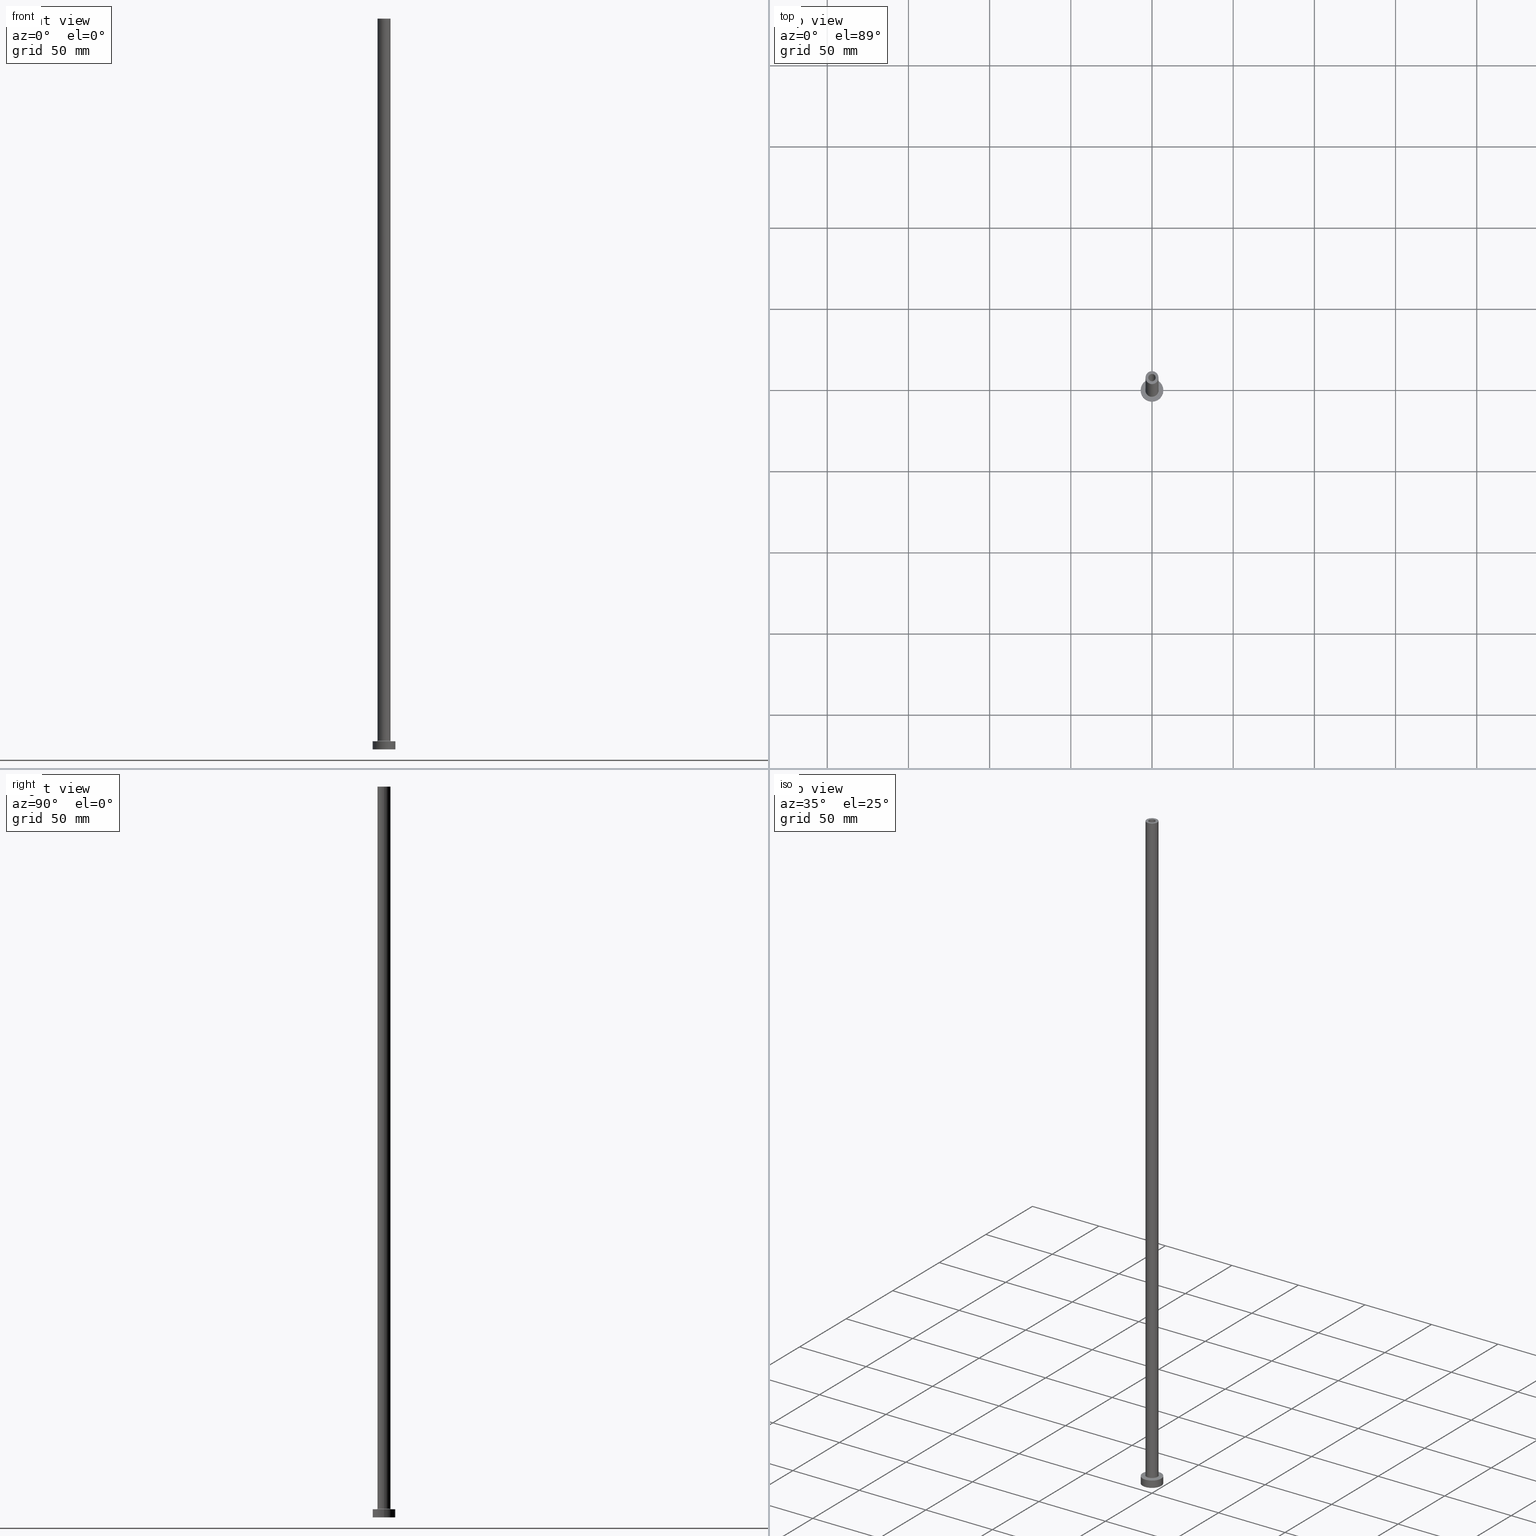
[diagram: canonical four-view strip — front | top / right | iso, engineering-drawing reading convention]
A machine part, canonical four-view strip (front | top / right | iso — engineering-drawing reading convention). The complete STEP part file that produces these views, byte-faithful:
ISO-10303-21;
HEADER;
FILE_DESCRIPTION (( 'STEP AP203' ),
    '1' );
FILE_NAME ('80ad.STEP',
    '2023-02-13T17:20:57',
    ( '' ),
    ( '' ),
    'SwSTEP 2.0',
    'SolidWorks 2019',
    '' );
FILE_SCHEMA (( 'CONFIG_CONTROL_DESIGN' ));
ENDSEC;

DATA;
#1 = ORIENTED_EDGE ( 'NONE', *, *, #332, .T. ) ;
#2 = CIRCLE ( 'NONE', #368, 2.250000000000000000 ) ;
#3 = AXIS2_PLACEMENT_3D ( 'NONE', #202, #346, #340 ) ;
#4 = AXIS2_PLACEMENT_3D ( 'NONE', #111, #216, #356 ) ;
#5 = VERTEX_POINT ( 'NONE', #152 ) ;
#6 = DIRECTION ( 'NONE',  ( 1.000000000000000000, 0.000000000000000000, 0.000000000000000000 ) ) ;
#7 = ORIENTED_EDGE ( 'NONE', *, *, #336, .F. ) ;
#8 = LINE ( 'NONE', #77, #139 ) ;
#9 = FACE_OUTER_BOUND ( 'NONE', #40, .T. ) ;
#10 = CIRCLE ( 'NONE', #266, 2.399999999999999911 ) ;
#11 = AXIS2_PLACEMENT_3D ( 'NONE', #276, #168, #234 ) ;
#12 = AXIS2_PLACEMENT_3D ( 'NONE', #301, #437, #256 ) ;
#13 = CARTESIAN_POINT ( 'NONE',  ( 7.000000000000000000, 8.572527594031473190E-16, 0.000000000000000000 ) ) ;
#14 = COORDINATED_UNIVERSAL_TIME_OFFSET ( 1, 0, .AHEAD. ) ;
#15 = DIRECTION ( 'NONE',  ( -1.000000000000000000, 0.000000000000000000, 0.000000000000000000 ) ) ;
#16 = CARTESIAN_POINT ( 'NONE',  ( 4.000000000000000000, 4.898587196589412829E-16, 450.0000000000000000 ) ) ;
#17 = ADVANCED_FACE ( 'NONE', ( #9 ), #154, .F. ) ;
#18 = CIRCLE ( 'NONE', #204, 7.000000000000000000 ) ;
#19 = DATE_AND_TIME ( #244, #422 ) ;
#20 = DIRECTION ( 'NONE',  ( 0.000000000000000000, 0.000000000000000000, -1.000000000000000000 ) ) ;
#21 = SECURITY_CLASSIFICATION_LEVEL ( 'unclassified' ) ;
#22 = DIRECTION ( 'NONE',  ( 1.000000000000000000, 0.000000000000000000, 0.000000000000000000 ) ) ;
#23 = CC_DESIGN_PERSON_AND_ORGANIZATION_ASSIGNMENT ( #182, #459, ( #147 ) ) ;
#24 = EDGE_CURVE ( 'NONE', #445, #169, #98, .T. ) ;
#25 = CALENDAR_DATE ( 2023, 13, 2 ) ;
#26 = CC_DESIGN_PERSON_AND_ORGANIZATION_ASSIGNMENT ( #303, #119, ( #299 ) ) ;
#27 = VECTOR ( 'NONE', #226, 1000.000000000000000 ) ;
#28 = CARTESIAN_POINT ( 'NONE',  ( 0.000000000000000000, 0.000000000000000000, 450.0000000000000000 ) ) ;
#29 = CC_DESIGN_APPROVAL ( #289, ( #225 ) ) ;
#30 = ORIENTED_EDGE ( 'NONE', *, *, #361, .T. ) ;
#31 = AXIS2_PLACEMENT_3D ( 'NONE', #393, #396, #79 ) ;
#32 = LINE ( 'NONE', #386, #174 ) ;
#33 = ORIENTED_EDGE ( 'NONE', *, *, #165, .F. ) ;
#34 = DIRECTION ( 'NONE',  ( 1.000000000000000000, 0.000000000000000000, 0.000000000000000000 ) ) ;
#35 = ORIENTED_EDGE ( 'NONE', *, *, #263, .F. ) ;
#36 = ADVANCED_FACE ( 'NONE', ( #222, #366 ), #460, .T. ) ;
#37 = CARTESIAN_POINT ( 'NONE',  ( -2.250000000000000000, 0.000000000000000000, 450.0000000000000000 ) ) ;
#38 = EDGE_LOOP ( 'NONE', ( #69, #71 ) ) ;
#39 = COORDINATED_UNIVERSAL_TIME_OFFSET ( 1, 0, .AHEAD. ) ;
#40 = EDGE_LOOP ( 'NONE', ( #254, #167, #351, #382 ) ) ;
#41 = CARTESIAN_POINT ( 'NONE',  ( 0.000000000000000000, 0.000000000000000000, 0.000000000000000000 ) ) ;
#42 = MANIFOLD_SOLID_BREP ( 'Odebrat vysunut�m4', #118 ) ;
#43 = DATE_AND_TIME ( #247, #236 ) ;
#44 = ORIENTED_EDGE ( 'NONE', *, *, #432, .F. ) ;
#45 = AXIS2_PLACEMENT_3D ( 'NONE', #28, #138, #348 ) ;
#46 = CIRCLE ( 'NONE', #372, 4.000000000000000000 ) ;
#47 = CARTESIAN_POINT ( 'NONE',  ( 0.000000000000000000, 0.000000000000000000, 5.000000000000000000 ) ) ;
#48 = ORIENTED_EDGE ( 'NONE', *, *, #336, .T. ) ;
#49 = EDGE_CURVE ( 'NONE', #411, #101, #446, .T. ) ;
#50 = ORIENTED_EDGE ( 'NONE', *, *, #432, .T. ) ;
#51 = PLANE ( 'NONE',  #54 ) ;
#52 = AXIS2_PLACEMENT_3D ( 'NONE', #242, #431, #363 ) ;
#53 = APPROVAL_STATUS ( 'not_yet_approved' ) ;
#54 = AXIS2_PLACEMENT_3D ( 'NONE', #261, #374, #199 ) ;
#55 = CARTESIAN_POINT ( 'NONE',  ( 0.000000000000000000, 0.000000000000000000, 405.0000000000000000 ) ) ;
#56 = EDGE_CURVE ( 'NONE', #428, #279, #246, .T. ) ;
#57 = LINE ( 'NONE', #436, #212 ) ;
#58 = LINE ( 'NONE', #400, #308 ) ;
#59 = PERSON_AND_ORGANIZATION ( #294, #110 ) ;
#60 = CIRCLE ( 'NONE', #230, 2.250000000000000000 ) ;
#61 = DIRECTION ( 'NONE',  ( -0.000000000000000000, -0.000000000000000000, -1.000000000000000000 ) ) ;
#62 = CARTESIAN_POINT ( 'NONE',  ( 2.250000000000000000, 2.755455298081543792E-16, 450.0000000000000000 ) ) ;
#63 = CARTESIAN_POINT ( 'NONE',  ( 0.000000000000000000, 0.000000000000000000, 5.500000000000005329 ) ) ;
#64 = ORIENTED_EDGE ( 'NONE', *, *, #82, .T. ) ;
#65 = FACE_BOUND ( 'NONE', #245, .T. ) ;
#66 = CIRCLE ( 'NONE', #377, 4.500000000000000888 ) ;
#67 = ORIENTED_EDGE ( 'NONE', *, *, #189, .T. ) ;
#68 = DIRECTION ( 'NONE',  ( 0.000000000000000000, 0.000000000000000000, 1.000000000000000000 ) ) ;
#69 = ORIENTED_EDGE ( 'NONE', *, *, #49, .T. ) ;
#70 = DIRECTION ( 'NONE',  ( 0.000000000000000000, 0.000000000000000000, -1.000000000000000000 ) ) ;
#71 = ORIENTED_EDGE ( 'NONE', *, *, #201, .T. ) ;
#72 = PERSON_AND_ORGANIZATION ( #294, #110 ) ;
#73 = AXIS2_PLACEMENT_3D ( 'NONE', #360, #153, #215 ) ;
#74 = ORIENTED_EDGE ( 'NONE', *, *, #323, .T. ) ;
#75 = AXIS2_PLACEMENT_3D ( 'NONE', #433, #120, #398 ) ;
#76 = DIRECTION ( 'NONE',  ( 0.000000000000000000, 0.000000000000000000, -1.000000000000000000 ) ) ;
#77 = CARTESIAN_POINT ( 'NONE',  ( 7.000000000000000000, 8.572527594031473190E-16, 5.000000000000000000 ) ) ;
#78 = CARTESIAN_POINT ( 'NONE',  ( 0.000000000000000000, 0.000000000000000000, 411.7882250993908428 ) ) ;
#79 = DIRECTION ( 'NONE',  ( 1.000000000000000000, 0.000000000000000000, 0.000000000000000000 ) ) ;
#80 = CIRCLE ( 'NONE', #183, 4.000000000000000000 ) ;
#81 = MECHANICAL_CONTEXT ( 'NONE', #142, 'mechanical' ) ;
#82 = EDGE_CURVE ( 'NONE', #312, #239, #415, .T. ) ;
#83 = ORIENTED_EDGE ( 'NONE', *, *, #337, .F. ) ;
#84 = PERSON_AND_ORGANIZATION ( #294, #110 ) ;
#85 = ORIENTED_EDGE ( 'NONE', *, *, #461, .F. ) ;
#86 = DATE_TIME_ROLE ( 'classification_date' ) ;
#87 = DIRECTION ( 'NONE',  ( -1.000000000000000000, 0.000000000000000000, 0.000000000000000000 ) ) ;
#88 = ADVANCED_FACE ( 'NONE', ( #190, #91 ), #51, .F. ) ;
#89 =( GEOMETRIC_REPRESENTATION_CONTEXT ( 3 ) GLOBAL_UNCERTAINTY_ASSIGNED_CONTEXT ( ( #434 ) ) GLOBAL_UNIT_ASSIGNED_CONTEXT ( ( #355, #426, #388 ) ) REPRESENTATION_CONTEXT ( 'NONE', 'WORKASPACE' ) );
#90 = APPROVAL_ROLE ( '' ) ;
#91 = FACE_OUTER_BOUND ( 'NONE', #292, .T. ) ;
#92 = CARTESIAN_POINT ( 'NONE',  ( 0.000000000000000000, 0.000000000000000000, 5.000000000000000000 ) ) ;
#93 = EDGE_CURVE ( 'NONE', #235, #445, #58, .T. ) ;
#94 = ADVANCED_FACE ( 'NONE', ( #229 ), #298, .F. ) ;
#95 = DIRECTION ( 'NONE',  ( 1.000000000000000000, 0.000000000000000000, 0.000000000000000000 ) ) ;
#96 = CIRCLE ( 'NONE', #453, 0.5000000000000004441 ) ;
#97 = DIRECTION ( 'NONE',  ( -0.000000000000000000, -0.000000000000000000, -1.000000000000000000 ) ) ;
#98 = CIRCLE ( 'NONE', #75, 7.000000000000000000 ) ;
#99 = DIRECTION ( 'NONE',  ( -1.000000000000000000, 0.000000000000000000, 0.000000000000000000 ) ) ;
#100 = FACE_OUTER_BOUND ( 'NONE', #186, .T. ) ;
#101 = VERTEX_POINT ( 'NONE', #406 ) ;
#102 = ADVANCED_FACE ( 'NONE', ( #442 ), #126, .T. ) ;
#103 = DIRECTION ( 'NONE',  ( 0.000000000000000000, 0.000000000000000000, -1.000000000000000000 ) ) ;
#104 = LOCAL_TIME ( 18, 20, 57.00000000000000000, #14 ) ;
#105 = EDGE_LOOP ( 'NONE', ( #349, #452, #184, #321 ) ) ;
#106 = DIRECTION ( 'NONE',  ( 0.000000000000000000, 0.000000000000000000, 1.000000000000000000 ) ) ;
#107 = APPROVAL ( #353, 'NEUR�EN�' ) ;
#108 = CARTESIAN_POINT ( 'NONE',  ( 0.000000000000000000, 0.000000000000000000, 450.0000000000000000 ) ) ;
#109 = COORDINATED_UNIVERSAL_TIME_OFFSET ( 1, 0, .AHEAD. ) ;
#110 = ORGANIZATION ( 'NEUR�EN�', 'NEUR�EN�', '' ) ;
#111 = CARTESIAN_POINT ( 'NONE',  ( 0.000000000000000000, 0.000000000000000000, 405.0000000000000000 ) ) ;
#112 = PERSON_AND_ORGANIZATION_ROLE ( 'design_owner' ) ;
#113 = EDGE_LOOP ( 'NONE', ( #397, #136 ) ) ;
#114 = DIRECTION ( 'NONE',  ( 0.000000000000000000, -1.000000000000000000, 0.000000000000000000 ) ) ;
#115 = FACE_OUTER_BOUND ( 'NONE', #233, .T. ) ;
#116 = EDGE_LOOP ( 'NONE', ( #427, #64, #1, #448 ) ) ;
#117 = CIRCLE ( 'NONE', #159, 4.000000000000000000 ) ;
#118 = CLOSED_SHELL ( 'NONE', ( #404, #17, #345, #237, #102, #367, #36, #88, #297, #325, #414, #94, #425, #127 ) ) ;
#119 = PERSON_AND_ORGANIZATION_ROLE ( 'classification_officer' ) ;
#120 = DIRECTION ( 'NONE',  ( 0.000000000000000000, 0.000000000000000000, 1.000000000000000000 ) ) ;
#121 = CALENDAR_DATE ( 2023, 13, 2 ) ;
#122 = CYLINDRICAL_SURFACE ( 'NONE', #257, 4.000000000000000000 ) ;
#123 = EDGE_CURVE ( 'NONE', #5, #362, #46, .T. ) ;
#124 = CARTESIAN_POINT ( 'NONE',  ( 0.000000000000000000, 0.000000000000000000, 450.0000000000000000 ) ) ;
#125 = CIRCLE ( 'NONE', #12, 2.250000000000000000 ) ;
#126 = CYLINDRICAL_SURFACE ( 'NONE', #384, 7.000000000000000000 ) ;
#127 = ADVANCED_FACE ( 'NONE', ( #227 ), #335, .F. ) ;
#128 = CARTESIAN_POINT ( 'NONE',  ( 0.000000000000000000, 0.000000000000000000, 5.000000000000000000 ) ) ;
#129 = DIRECTION ( 'NONE',  ( -1.000000000000000000, 0.000000000000000000, 0.000000000000000000 ) ) ;
#130 = TOROIDAL_SURFACE ( 'NONE', #444, 4.500000000000000888, 0.5000000000000000000 ) ;
#131 = CYLINDRICAL_SURFACE ( 'NONE', #243, 2.250000000000000000 ) ;
#132 = ORIENTED_EDGE ( 'NONE', *, *, #165, .T. ) ;
#133 = CARTESIAN_POINT ( 'NONE',  ( -2.250000000000000000, 0.000000000000000000, 450.0000000000000000 ) ) ;
#134 = ORIENTED_EDGE ( 'NONE', *, *, #24, .T. ) ;
#135 = DIRECTION ( 'NONE',  ( 1.000000000000000000, 0.000000000000000000, 0.000000000000000000 ) ) ;
#136 = ORIENTED_EDGE ( 'NONE', *, *, #429, .T. ) ;
#137 = PRODUCT_DEFINITION_SHAPE ( 'NONE', 'NONE',  #147 ) ;
#138 = DIRECTION ( 'NONE',  ( -0.000000000000000000, -0.000000000000000000, -1.000000000000000000 ) ) ;
#139 = VECTOR ( 'NONE', #395, 1000.000000000000000 ) ;
#140 = EDGE_LOOP ( 'NONE', ( #209, #30 ) ) ;
#141 = DIRECTION ( 'NONE',  ( 1.000000000000000000, 0.000000000000000000, 0.000000000000000000 ) ) ;
#142 = APPLICATION_CONTEXT ( 'configuration controlled 3d designs of mechanical parts and assemblies' ) ;
#143 = ORIENTED_EDGE ( 'NONE', *, *, #259, .F. ) ;
#144 = CARTESIAN_POINT ( 'NONE',  ( -4.000000000000000000, 0.000000000000000000, 450.0000000000000000 ) ) ;
#145 = ORIENTED_EDGE ( 'NONE', *, *, #361, .F. ) ;
#146 = CARTESIAN_POINT ( 'NONE',  ( 2.399999999999999911, 2.939152317953647106E-16, 0.000000000000000000 ) ) ;
#147 = PRODUCT_DEFINITION ( 'NEZN�M�', '', #225, #329 ) ;
#148 = AXIS2_PLACEMENT_3D ( 'NONE', #313, #378, #417 ) ;
#149 = ORIENTED_EDGE ( 'NONE', *, *, #323, .F. ) ;
#150 = APPROVAL_ROLE ( '' ) ;
#151 = EDGE_LOOP ( 'NONE', ( #188, #391, #74, #85 ) ) ;
#152 = CARTESIAN_POINT ( 'NONE',  ( -4.000000000000000000, 0.000000000000000000, 5.500000000000005329 ) ) ;
#153 = DIRECTION ( 'NONE',  ( 0.000000000000000000, 0.000000000000000000, 1.000000000000000000 ) ) ;
#154 = CYLINDRICAL_SURFACE ( 'NONE', #176, 2.399999999999999911 ) ;
#155 = PERSON_AND_ORGANIZATION ( #294, #110 ) ;
#156 = DIRECTION ( 'NONE',  ( 1.000000000000000000, 0.000000000000000000, 0.000000000000000000 ) ) ;
#157 = DIRECTION ( 'NONE',  ( 0.000000000000000000, 0.000000000000000000, 1.000000000000000000 ) ) ;
#158 = CARTESIAN_POINT ( 'NONE',  ( 4.500000000000000888, 0.000000000000000000, 5.000000000000002665 ) ) ;
#159 = AXIS2_PLACEMENT_3D ( 'NONE', #451, #106, #240 ) ;
#160 = CARTESIAN_POINT ( 'NONE',  ( 0.000000000000000000, 0.000000000000000000, 450.0000000000000000 ) ) ;
#161 = DIRECTION ( 'NONE',  ( 1.000000000000000000, 0.000000000000000000, 0.000000000000000000 ) ) ;
#162 = APPROVAL_DATE_TIME ( #195, #454 ) ;
#163 = CARTESIAN_POINT ( 'NONE',  ( 2.399999999999999911, 2.939152317953647106E-16, 405.0000000000000000 ) ) ;
#164 = CC_DESIGN_APPROVAL ( #107, ( #147 ) ) ;
#165 = EDGE_CURVE ( 'NONE', #408, #101, #57, .T. ) ;
#166 = PLANE ( 'NONE',  #3 ) ;
#167 = ORIENTED_EDGE ( 'NONE', *, *, #171, .T. ) ;
#168 = DIRECTION ( 'NONE',  ( 0.000000000000000000, 0.000000000000000000, 1.000000000000000000 ) ) ;
#169 = VERTEX_POINT ( 'NONE', #13 ) ;
#170 = DIRECTION ( 'NONE',  ( 0.000000000000000000, 0.000000000000000000, 1.000000000000000000 ) ) ;
#171 = EDGE_CURVE ( 'NONE', #312, #428, #330, .T. ) ;
#172 = EDGE_CURVE ( 'NONE', #279, #428, #10, .T. ) ;
#173 = CARTESIAN_POINT ( 'NONE',  ( 0.000000000000000000, 0.000000000000000000, 450.0000000000000000 ) ) ;
#174 = VECTOR ( 'NONE', #70, 1000.000000000000000 ) ;
#175 = ORIENTED_EDGE ( 'NONE', *, *, #56, .F. ) ;
#176 = AXIS2_PLACEMENT_3D ( 'NONE', #78, #76, #217 ) ;
#177 = LINE ( 'NONE', #144, #438 ) ;
#178 = EDGE_LOOP ( 'NONE', ( #7, #149, #424, #145 ) ) ;
#179 = APPLICATION_CONTEXT ( 'configuration controlled 3d designs of mechanical parts and assemblies' ) ;
#180 = DIRECTION ( 'NONE',  ( 1.000000000000000000, 0.000000000000000000, 0.000000000000000000 ) ) ;
#181 = EDGE_LOOP ( 'NONE', ( #318, #175 ) ) ;
#182 = PERSON_AND_ORGANIZATION ( #294, #110 ) ;
#183 = AXIS2_PLACEMENT_3D ( 'NONE', #108, #412, #407 ) ;
#184 = ORIENTED_EDGE ( 'NONE', *, *, #461, .T. ) ;
#185 = APPLICATION_PROTOCOL_DEFINITION ( 'international standard', 'config_control_design', 1994, #179 ) ;
#186 = EDGE_LOOP ( 'NONE', ( #249, #48, #241, #288 ) ) ;
#187 = CARTESIAN_POINT ( 'NONE',  ( 4.000000000000000000, 4.898587196589412829E-16, 450.0000000000000000 ) ) ;
#188 = ORIENTED_EDGE ( 'NONE', *, *, #394, .F. ) ;
#189 = EDGE_CURVE ( 'NONE', #169, #445, #18, .T. ) ;
#190 = FACE_BOUND ( 'NONE', #181, .T. ) ;
#191 = CIRCLE ( 'NONE', #11, 4.000000000000000000 ) ;
#192 = AXIS2_PLACEMENT_3D ( 'NONE', #287, #319, #420 ) ;
#193 = DIRECTION ( 'NONE',  ( 0.000000000000000000, 0.000000000000000000, 1.000000000000000000 ) ) ;
#194 = CARTESIAN_POINT ( 'NONE',  ( 0.000000000000000000, 0.000000000000000000, 405.0000000000000000 ) ) ;
#195 = DATE_AND_TIME ( #25, #104 ) ;
#196 = CC_DESIGN_DATE_AND_TIME_ASSIGNMENT ( #399, #86, ( #299 ) ) ;
#197 = CARTESIAN_POINT ( 'NONE',  ( 0.000000000000000000, 0.000000000000000000, 411.7882250993908428 ) ) ;
#198 = PERSON_AND_ORGANIZATION_ROLE ( 'design_supplier' ) ;
#199 = DIRECTION ( 'NONE',  ( 1.000000000000000000, 0.000000000000000000, -0.000000000000000000 ) ) ;
#200 = CARTESIAN_POINT ( 'NONE',  ( -2.250000000000000000, 0.000000000000000000, 405.0000000000000000 ) ) ;
#201 = EDGE_CURVE ( 'NONE', #101, #411, #2, .T. ) ;
#202 = CARTESIAN_POINT ( 'NONE',  ( 0.000000000000000000, 0.000000000000000000, 450.0000000000000000 ) ) ;
#203 = ORIENTED_EDGE ( 'NONE', *, *, #263, .T. ) ;
#204 = AXIS2_PLACEMENT_3D ( 'NONE', #376, #193, #95 ) ;
#205 = CIRCLE ( 'NONE', #390, 7.000000000000000000 ) ;
#206 = CARTESIAN_POINT ( 'NONE',  ( 7.000000000000000000, 8.572527594031473190E-16, 5.000000000000000000 ) ) ;
#207 = ORIENTED_EDGE ( 'NONE', *, *, #394, .T. ) ;
#208 = DIRECTION ( 'NONE',  ( 0.000000000000000000, 0.000000000000000000, 1.000000000000000000 ) ) ;
#209 = ORIENTED_EDGE ( 'NONE', *, *, #455, .T. ) ;
#210 = DIRECTION ( 'NONE',  ( 1.224646799147353207E-16, 1.000000000000000000, -0.000000000000000000 ) ) ;
#211 = ORIENTED_EDGE ( 'NONE', *, *, #189, .F. ) ;
#212 = VECTOR ( 'NONE', #334, 1000.000000000000000 ) ;
#213 = CARTESIAN_POINT ( 'NONE',  ( 4.500000000000000888, 0.000000000000000000, 5.500000000000005329 ) ) ;
#214 = CC_DESIGN_DATE_AND_TIME_ASSIGNMENT ( #19, #223, ( #147 ) ) ;
#215 = DIRECTION ( 'NONE',  ( 1.000000000000000000, 0.000000000000000000, -0.000000000000000000 ) ) ;
#216 = DIRECTION ( 'NONE',  ( 0.000000000000000000, 0.000000000000000000, 1.000000000000000000 ) ) ;
#217 = DIRECTION ( 'NONE',  ( -1.000000000000000000, 0.000000000000000000, 0.000000000000000000 ) ) ;
#218 = CC_DESIGN_SECURITY_CLASSIFICATION ( #299, ( #225 ) ) ;
#219 = EDGE_LOOP ( 'NONE', ( #389, #207 ) ) ;
#220 = PERSON_AND_ORGANIZATION ( #294, #110 ) ;
#221 = VERTEX_POINT ( 'NONE', #304 ) ;
#222 = FACE_BOUND ( 'NONE', #140, .T. ) ;
#223 = DATE_TIME_ROLE ( 'creation_date' ) ;
#224 = DIRECTION ( 'NONE',  ( -1.000000000000000000, 0.000000000000000000, 0.000000000000000000 ) ) ;
#225 = PRODUCT_DEFINITION_FORMATION_WITH_SPECIFIED_SOURCE ( 'LIBOVOLN�', '', #265, .NOT_KNOWN. ) ;
#226 = DIRECTION ( 'NONE',  ( 0.000000000000000000, 0.000000000000000000, -1.000000000000000000 ) ) ;
#227 = FACE_OUTER_BOUND ( 'NONE', #277, .T. ) ;
#228 = APPROVAL_DATE_TIME ( #440, #289 ) ;
#229 = FACE_OUTER_BOUND ( 'NONE', #116, .T. ) ;
#230 = AXIS2_PLACEMENT_3D ( 'NONE', #173, #170, #311 ) ;
#231 = DIRECTION ( 'NONE',  ( 0.000000000000000000, 0.000000000000000000, 1.000000000000000000 ) ) ;
#232 = CYLINDRICAL_SURFACE ( 'NONE', #45, 4.000000000000000000 ) ;
#233 = EDGE_LOOP ( 'NONE', ( #143, #347 ) ) ;
#234 = DIRECTION ( 'NONE',  ( 1.000000000000000000, 0.000000000000000000, 0.000000000000000000 ) ) ;
#235 = VERTEX_POINT ( 'NONE', #264 ) ;
#236 = LOCAL_TIME ( 18, 20, 57.00000000000000000, #39 ) ;
#237 = ADVANCED_FACE ( 'NONE', ( #403 ), #122, .T. ) ;
#238 = FACE_OUTER_BOUND ( 'NONE', #178, .T. ) ;
#239 = VERTEX_POINT ( 'NONE', #293 ) ;
#240 = DIRECTION ( 'NONE',  ( 1.000000000000000000, 0.000000000000000000, 0.000000000000000000 ) ) ;
#241 = ORIENTED_EDGE ( 'NONE', *, *, #455, .F. ) ;
#242 = CARTESIAN_POINT ( 'NONE',  ( 0.000000000000000000, 0.000000000000000000, 5.000000000000000000 ) ) ;
#243 = AXIS2_PLACEMENT_3D ( 'NONE', #305, #103, #99 ) ;
#244 = CALENDAR_DATE ( 2023, 13, 2 ) ;
#245 = EDGE_LOOP ( 'NONE', ( #83, #35 ) ) ;
#246 = CIRCLE ( 'NONE', #322, 2.399999999999999911 ) ;
#247 = CALENDAR_DATE ( 2023, 13, 2 ) ;
#248 = DIRECTION ( 'NONE',  ( 1.000000000000000000, 0.000000000000000000, 0.000000000000000000 ) ) ;
#249 = ORIENTED_EDGE ( 'NONE', *, *, #123, .F. ) ;
#250 = EDGE_CURVE ( 'NONE', #457, #362, #255, .T. ) ;
#251 = DIRECTION ( 'NONE',  ( -0.000000000000000000, -0.000000000000000000, -1.000000000000000000 ) ) ;
#252 = AXIS2_PLACEMENT_3D ( 'NONE', #55, #157, #296 ) ;
#253 = ORIENTED_EDGE ( 'NONE', *, *, #201, .F. ) ;
#254 = ORIENTED_EDGE ( 'NONE', *, *, #259, .T. ) ;
#255 = LINE ( 'NONE', #16, #283 ) ;
#256 = DIRECTION ( 'NONE',  ( 1.000000000000000000, 0.000000000000000000, 0.000000000000000000 ) ) ;
#257 = AXIS2_PLACEMENT_3D ( 'NONE', #160, #97, #224 ) ;
#258 = AXIS2_PLACEMENT_3D ( 'NONE', #341, #68, #34 ) ;
#259 = EDGE_CURVE ( 'NONE', #239, #312, #284, .T. ) ;
#260 = DIRECTION ( 'NONE',  ( -0.000000000000000000, -0.000000000000000000, -1.000000000000000000 ) ) ;
#261 = CARTESIAN_POINT ( 'NONE',  ( 0.000000000000000000, 0.000000000000000000, 0.000000000000000000 ) ) ;
#262 = ADVANCED_BREP_SHAPE_REPRESENTATION ( '80ad', ( #42, #307 ), #89 ) ;
#263 = EDGE_CURVE ( 'NONE', #408, #282, #125, .T. ) ;
#264 = CARTESIAN_POINT ( 'NONE',  ( -7.000000000000000000, 0.000000000000000000, 5.000000000000000000 ) ) ;
#265 = PRODUCT ( '80ad', '80ad', '', ( #81 ) ) ;
#266 = AXIS2_PLACEMENT_3D ( 'NONE', #405, #260, #161 ) ;
#267 = AXIS2_PLACEMENT_3D ( 'NONE', #316, #456, #141 ) ;
#268 = TOROIDAL_SURFACE ( 'NONE', #258, 4.500000000000000888, 0.5000000000000000000 ) ;
#269 = FACE_OUTER_BOUND ( 'NONE', #272, .T. ) ;
#270 = VERTEX_POINT ( 'NONE', #158 ) ;
#271 = CARTESIAN_POINT ( 'NONE',  ( -4.500000000000000888, 5.510910596163089556E-16, 5.500000000000005329 ) ) ;
#272 = EDGE_LOOP ( 'NONE', ( #357, #132, #306, #387 ) ) ;
#273 = CYLINDRICAL_SURFACE ( 'NONE', #148, 7.000000000000000000 ) ;
#274 = CC_DESIGN_PERSON_AND_ORGANIZATION_ASSIGNMENT ( #59, #198, ( #225 ) ) ;
#275 = LOCAL_TIME ( 18, 20, 57.00000000000000000, #365 ) ;
#276 = CARTESIAN_POINT ( 'NONE',  ( 0.000000000000000000, 0.000000000000000000, 5.500000000000005329 ) ) ;
#277 = EDGE_LOOP ( 'NONE', ( #33, #203, #310, #253 ) ) ;
#278 = CARTESIAN_POINT ( 'NONE',  ( 4.000000000000000000, 4.898587196589412829E-16, 5.500000000000005329 ) ) ;
#279 = VERTEX_POINT ( 'NONE', #439 ) ;
#280 = APPLICATION_PROTOCOL_DEFINITION ( 'international standard', 'config_control_design', 1994, #142 ) ;
#281 = EDGE_CURVE ( 'NONE', #235, #314, #205, .T. ) ;
#282 = VERTEX_POINT ( 'NONE', #37 ) ;
#283 = VECTOR ( 'NONE', #371, 1000.000000000000000 ) ;
#284 = CIRCLE ( 'NONE', #252, 2.399999999999999911 ) ;
#285 = DIRECTION ( 'NONE',  ( -0.000000000000000000, -0.000000000000000000, -1.000000000000000000 ) ) ;
#286 = CARTESIAN_POINT ( 'NONE',  ( -4.500000000000000888, 5.510910596163088569E-16, 5.000000000000002665 ) ) ;
#287 = CARTESIAN_POINT ( 'NONE',  ( 0.000000000000000000, 0.000000000000000000, 5.000000000000000000 ) ) ;
#288 = ORIENTED_EDGE ( 'NONE', *, *, #458, .F. ) ;
#289 = APPROVAL ( #300, 'NEUR�EN�' ) ;
#290 = DIRECTION ( 'NONE',  ( 0.000000000000000000, 0.000000000000000000, 1.000000000000000000 ) ) ;
#291 = VECTOR ( 'NONE', #381, 1000.000000000000000 ) ;
#292 = EDGE_LOOP ( 'NONE', ( #328, #211 ) ) ;
#293 = CARTESIAN_POINT ( 'NONE',  ( -2.399999999999999911, 0.000000000000000000, 405.0000000000000000 ) ) ;
#294 = PERSON ( 'NEUR�EN�', 'NEUR�EN�', 'NEUR�EN�', ('NEUR�EN�'), ('NEUR�EN�'), ('NEUR�EN�') ) ;
#295 = CALENDAR_DATE ( 2023, 13, 2 ) ;
#296 = DIRECTION ( 'NONE',  ( 1.000000000000000000, 0.000000000000000000, 0.000000000000000000 ) ) ;
#297 = ADVANCED_FACE ( 'NONE', ( #309 ), #232, .T. ) ;
#298 = CYLINDRICAL_SURFACE ( 'NONE', #344, 2.399999999999999911 ) ;
#299 = SECURITY_CLASSIFICATION ( '', '', #21 ) ;
#300 = APPROVAL_STATUS ( 'not_yet_approved' ) ;
#301 = CARTESIAN_POINT ( 'NONE',  ( 0.000000000000000000, 0.000000000000000000, 450.0000000000000000 ) ) ;
#302 = EDGE_CURVE ( 'NONE', #282, #411, #443, .T. ) ;
#303 = PERSON_AND_ORGANIZATION ( #294, #110 ) ;
#304 = CARTESIAN_POINT ( 'NONE',  ( -4.000000000000000000, 0.000000000000000000, 450.0000000000000000 ) ) ;
#305 = CARTESIAN_POINT ( 'NONE',  ( 0.000000000000000000, 0.000000000000000000, 450.0000000000000000 ) ) ;
#306 = ORIENTED_EDGE ( 'NONE', *, *, #49, .F. ) ;
#307 = AXIS2_PLACEMENT_3D ( 'NONE', #423, #290, #180 ) ;
#308 = VECTOR ( 'NONE', #61, 1000.000000000000000 ) ;
#309 = FACE_OUTER_BOUND ( 'NONE', #105, .T. ) ;
#310 = ORIENTED_EDGE ( 'NONE', *, *, #302, .T. ) ;
#311 = DIRECTION ( 'NONE',  ( 1.000000000000000000, 0.000000000000000000, 0.000000000000000000 ) ) ;
#312 = VERTEX_POINT ( 'NONE', #163 ) ;
#313 = CARTESIAN_POINT ( 'NONE',  ( 0.000000000000000000, 0.000000000000000000, 5.000000000000000000 ) ) ;
#314 = VERTEX_POINT ( 'NONE', #206 ) ;
#315 = CIRCLE ( 'NONE', #267, 4.500000000000000888 ) ;
#316 = CARTESIAN_POINT ( 'NONE',  ( 0.000000000000000000, 0.000000000000000000, 5.000000000000000000 ) ) ;
#317 = APPROVAL_DATE_TIME ( #43, #107 ) ;
#318 = ORIENTED_EDGE ( 'NONE', *, *, #172, .F. ) ;
#319 = DIRECTION ( 'NONE',  ( 0.000000000000000000, 0.000000000000000000, 1.000000000000000000 ) ) ;
#320 = DIRECTION ( 'NONE',  ( -0.000000000000000000, -0.000000000000000000, -1.000000000000000000 ) ) ;
#321 = ORIENTED_EDGE ( 'NONE', *, *, #123, .T. ) ;
#322 = AXIS2_PLACEMENT_3D ( 'NONE', #41, #285, #248 ) ;
#323 = EDGE_CURVE ( 'NONE', #362, #5, #191, .T. ) ;
#324 = ORIENTED_EDGE ( 'NONE', *, *, #93, .T. ) ;
#325 = ADVANCED_FACE ( 'NONE', ( #65, #416 ), #166, .T. ) ;
#326 = EDGE_CURVE ( 'NONE', #221, #457, #117, .T. ) ;
#327 = DIRECTION ( 'NONE',  ( 0.000000000000000000, 0.000000000000000000, -1.000000000000000000 ) ) ;
#328 = ORIENTED_EDGE ( 'NONE', *, *, #24, .F. ) ;
#329 = DESIGN_CONTEXT ( 'detailed design', #179, 'design' ) ;
#330 = LINE ( 'NONE', #338, #27 ) ;
#331 = APPROVAL_ROLE ( '' ) ;
#332 = EDGE_CURVE ( 'NONE', #239, #279, #32, .T. ) ;
#333 = CARTESIAN_POINT ( 'NONE',  ( 0.000000000000000000, 0.000000000000000000, 5.500000000000005329 ) ) ;
#334 = DIRECTION ( 'NONE',  ( 0.000000000000000000, 0.000000000000000000, -1.000000000000000000 ) ) ;
#335 = CYLINDRICAL_SURFACE ( 'NONE', #421, 2.250000000000000000 ) ;
#336 = EDGE_CURVE ( 'NONE', #5, #450, #96, .T. ) ;
#337 = EDGE_CURVE ( 'NONE', #282, #408, #60, .T. ) ;
#338 = CARTESIAN_POINT ( 'NONE',  ( 2.399999999999999911, 2.939152317953647106E-16, 411.7882250993908428 ) ) ;
#339 = PRODUCT_RELATED_PRODUCT_CATEGORY ( 'detail', '', ( #265 ) ) ;
#340 = DIRECTION ( 'NONE',  ( 1.000000000000000000, 0.000000000000000000, -0.000000000000000000 ) ) ;
#341 = CARTESIAN_POINT ( 'NONE',  ( 0.000000000000000000, 0.000000000000000000, 5.500000000000005329 ) ) ;
#342 = EDGE_LOOP ( 'NONE', ( #44, #354, #324, #134 ) ) ;
#343 = APPROVAL_PERSON_ORGANIZATION ( #369, #454, #331 ) ;
#344 = AXIS2_PLACEMENT_3D ( 'NONE', #197, #402, #87 ) ;
#345 = ADVANCED_FACE ( 'NONE', ( #100 ), #130, .F. ) ;
#346 = DIRECTION ( 'NONE',  ( 0.000000000000000000, 0.000000000000000000, 1.000000000000000000 ) ) ;
#347 = ORIENTED_EDGE ( 'NONE', *, *, #82, .F. ) ;
#348 = DIRECTION ( 'NONE',  ( -1.000000000000000000, 0.000000000000000000, 0.000000000000000000 ) ) ;
#349 = ORIENTED_EDGE ( 'NONE', *, *, #250, .F. ) ;
#350 = DIRECTION ( 'NONE',  ( -1.000000000000000000, 1.224646799147351482E-16, 0.000000000000000000 ) ) ;
#351 = ORIENTED_EDGE ( 'NONE', *, *, #56, .T. ) ;
#352 = AXIS2_PLACEMENT_3D ( 'NONE', #213, #114, #327 ) ;
#353 = APPROVAL_STATUS ( 'not_yet_approved' ) ;
#354 = ORIENTED_EDGE ( 'NONE', *, *, #281, .F. ) ;
#355 =( LENGTH_UNIT ( ) NAMED_UNIT ( * ) SI_UNIT ( .MILLI., .METRE. ) );
#356 = DIRECTION ( 'NONE',  ( 1.000000000000000000, 0.000000000000000000, 0.000000000000000000 ) ) ;
#357 = ORIENTED_EDGE ( 'NONE', *, *, #337, .T. ) ;
#358 = CC_DESIGN_APPROVAL ( #454, ( #299 ) ) ;
#359 = CC_DESIGN_PERSON_AND_ORGANIZATION_ASSIGNMENT ( #155, #375, ( #225 ) ) ;
#360 = CARTESIAN_POINT ( 'NONE',  ( 0.000000000000000000, 0.000000000000000000, 405.0000000000000000 ) ) ;
#361 = EDGE_CURVE ( 'NONE', #450, #270, #315, .T. ) ;
#362 = VERTEX_POINT ( 'NONE', #278 ) ;
#363 = DIRECTION ( 'NONE',  ( 1.000000000000000000, 0.000000000000000000, 0.000000000000000000 ) ) ;
#364 = ORIENTED_EDGE ( 'NONE', *, *, #429, .F. ) ;
#365 = COORDINATED_UNIVERSAL_TIME_OFFSET ( 1, 0, .AHEAD. ) ;
#366 = FACE_OUTER_BOUND ( 'NONE', #113, .T. ) ;
#367 = ADVANCED_FACE ( 'NONE', ( #449 ), #273, .T. ) ;
#368 = AXIS2_PLACEMENT_3D ( 'NONE', #194, #441, #156 ) ;
#369 = PERSON_AND_ORGANIZATION ( #294, #110 ) ;
#370 = APPROVAL_PERSON_ORGANIZATION ( #72, #107, #150 ) ;
#371 = DIRECTION ( 'NONE',  ( -0.000000000000000000, -0.000000000000000000, -1.000000000000000000 ) ) ;
#372 = AXIS2_PLACEMENT_3D ( 'NONE', #333, #231, #22 ) ;
#373 = DIRECTION ( 'NONE',  ( -0.000000000000000000, -0.000000000000000000, -1.000000000000000000 ) ) ;
#374 = DIRECTION ( 'NONE',  ( 0.000000000000000000, 0.000000000000000000, 1.000000000000000000 ) ) ;
#375 = PERSON_AND_ORGANIZATION_ROLE ( 'creator' ) ;
#376 = CARTESIAN_POINT ( 'NONE',  ( 0.000000000000000000, 0.000000000000000000, 0.000000000000000000 ) ) ;
#377 = AXIS2_PLACEMENT_3D ( 'NONE', #47, #320, #6 ) ;
#378 = DIRECTION ( 'NONE',  ( -0.000000000000000000, -0.000000000000000000, -1.000000000000000000 ) ) ;
#379 = CC_DESIGN_PERSON_AND_ORGANIZATION_ASSIGNMENT ( #220, #112, ( #265 ) ) ;
#380 = FACE_BOUND ( 'NONE', #38, .T. ) ;
#381 = DIRECTION ( 'NONE',  ( 0.000000000000000000, 0.000000000000000000, -1.000000000000000000 ) ) ;
#382 = ORIENTED_EDGE ( 'NONE', *, *, #332, .F. ) ;
#383 = CIRCLE ( 'NONE', #352, 0.5000000000000004441 ) ;
#384 = AXIS2_PLACEMENT_3D ( 'NONE', #128, #373, #129 ) ;
#385 = EDGE_LOOP ( 'NONE', ( #364, #50, #67, #418 ) ) ;
#386 = CARTESIAN_POINT ( 'NONE',  ( -2.399999999999999911, 0.000000000000000000, 411.7882250993908428 ) ) ;
#387 = ORIENTED_EDGE ( 'NONE', *, *, #302, .F. ) ;
#388 =( NAMED_UNIT ( * ) SI_UNIT ( $, .STERADIAN. ) SOLID_ANGLE_UNIT ( ) );
#389 = ORIENTED_EDGE ( 'NONE', *, *, #326, .T. ) ;
#390 = AXIS2_PLACEMENT_3D ( 'NONE', #92, #409, #447 ) ;
#391 = ORIENTED_EDGE ( 'NONE', *, *, #250, .T. ) ;
#392 = PLANE ( 'NONE',  #73 ) ;
#393 = CARTESIAN_POINT ( 'NONE',  ( 0.000000000000000000, 0.000000000000000000, 405.0000000000000000 ) ) ;
#394 = EDGE_CURVE ( 'NONE', #457, #221, #80, .T. ) ;
#395 = DIRECTION ( 'NONE',  ( -0.000000000000000000, -0.000000000000000000, -1.000000000000000000 ) ) ;
#396 = DIRECTION ( 'NONE',  ( 0.000000000000000000, 0.000000000000000000, 1.000000000000000000 ) ) ;
#397 = ORIENTED_EDGE ( 'NONE', *, *, #281, .T. ) ;
#398 = DIRECTION ( 'NONE',  ( 1.000000000000000000, 0.000000000000000000, 0.000000000000000000 ) ) ;
#399 = DATE_AND_TIME ( #121, #275 ) ;
#400 = CARTESIAN_POINT ( 'NONE',  ( -7.000000000000000000, 0.000000000000000000, 5.000000000000000000 ) ) ;
#401 = APPROVAL_PERSON_ORGANIZATION ( #84, #289, #90 ) ;
#402 = DIRECTION ( 'NONE',  ( 0.000000000000000000, 0.000000000000000000, -1.000000000000000000 ) ) ;
#403 = FACE_OUTER_BOUND ( 'NONE', #151, .T. ) ;
#404 = ADVANCED_FACE ( 'NONE', ( #269 ), #131, .F. ) ;
#405 = CARTESIAN_POINT ( 'NONE',  ( 0.000000000000000000, 0.000000000000000000, 0.000000000000000000 ) ) ;
#406 = CARTESIAN_POINT ( 'NONE',  ( 2.250000000000000000, 2.755455298081543792E-16, 405.0000000000000000 ) ) ;
#407 = DIRECTION ( 'NONE',  ( 1.000000000000000000, 0.000000000000000000, 0.000000000000000000 ) ) ;
#408 = VERTEX_POINT ( 'NONE', #62 ) ;
#409 = DIRECTION ( 'NONE',  ( 0.000000000000000000, 0.000000000000000000, 1.000000000000000000 ) ) ;
#410 = SHAPE_DEFINITION_REPRESENTATION ( #137, #262 ) ;
#411 = VERTEX_POINT ( 'NONE', #200 ) ;
#412 = DIRECTION ( 'NONE',  ( 0.000000000000000000, 0.000000000000000000, 1.000000000000000000 ) ) ;
#413 = LOCAL_TIME ( 18, 20, 57.00000000000000000, #435 ) ;
#414 = ADVANCED_FACE ( 'NONE', ( #238 ), #268, .F. ) ;
#415 = CIRCLE ( 'NONE', #31, 2.399999999999999911 ) ;
#416 = FACE_OUTER_BOUND ( 'NONE', #219, .T. ) ;
#417 = DIRECTION ( 'NONE',  ( -1.000000000000000000, 0.000000000000000000, 0.000000000000000000 ) ) ;
#418 = ORIENTED_EDGE ( 'NONE', *, *, #93, .F. ) ;
#419 = CARTESIAN_POINT ( 'NONE',  ( -7.000000000000000000, 0.000000000000000000, 0.000000000000000000 ) ) ;
#420 = DIRECTION ( 'NONE',  ( 1.000000000000000000, 0.000000000000000000, -0.000000000000000000 ) ) ;
#421 = AXIS2_PLACEMENT_3D ( 'NONE', #124, #20, #15 ) ;
#422 = LOCAL_TIME ( 18, 20, 57.00000000000000000, #109 ) ;
#423 = CARTESIAN_POINT ( 'NONE',  ( 0.000000000000000000, 0.000000000000000000, 0.000000000000000000 ) ) ;
#424 = ORIENTED_EDGE ( 'NONE', *, *, #458, .T. ) ;
#425 = ADVANCED_FACE ( 'NONE', ( #380, #115 ), #392, .F. ) ;
#426 =( NAMED_UNIT ( * ) PLANE_ANGLE_UNIT ( ) SI_UNIT ( $, .RADIAN. ) );
#427 = ORIENTED_EDGE ( 'NONE', *, *, #171, .F. ) ;
#428 = VERTEX_POINT ( 'NONE', #146 ) ;
#429 = EDGE_CURVE ( 'NONE', #314, #235, #430, .T. ) ;
#430 = CIRCLE ( 'NONE', #52, 7.000000000000000000 ) ;
#431 = DIRECTION ( 'NONE',  ( 0.000000000000000000, 0.000000000000000000, 1.000000000000000000 ) ) ;
#432 = EDGE_CURVE ( 'NONE', #314, #169, #8, .T. ) ;
#433 = CARTESIAN_POINT ( 'NONE',  ( 0.000000000000000000, 0.000000000000000000, 0.000000000000000000 ) ) ;
#434 = UNCERTAINTY_MEASURE_WITH_UNIT (LENGTH_MEASURE( 1.000000000000000082E-05 ), #355, 'distance_accuracy_value', 'NONE');
#435 = COORDINATED_UNIVERSAL_TIME_OFFSET ( 1, 0, .AHEAD. ) ;
#436 = CARTESIAN_POINT ( 'NONE',  ( 2.250000000000000000, 2.755455298081543792E-16, 450.0000000000000000 ) ) ;
#437 = DIRECTION ( 'NONE',  ( 0.000000000000000000, 0.000000000000000000, 1.000000000000000000 ) ) ;
#438 = VECTOR ( 'NONE', #251, 1000.000000000000000 ) ;
#439 = CARTESIAN_POINT ( 'NONE',  ( -2.399999999999999911, 0.000000000000000000, 0.000000000000000000 ) ) ;
#440 = DATE_AND_TIME ( #295, #413 ) ;
#441 = DIRECTION ( 'NONE',  ( 0.000000000000000000, 0.000000000000000000, 1.000000000000000000 ) ) ;
#442 = FACE_OUTER_BOUND ( 'NONE', #385, .T. ) ;
#443 = LINE ( 'NONE', #133, #291 ) ;
#444 = AXIS2_PLACEMENT_3D ( 'NONE', #63, #208, #135 ) ;
#445 = VERTEX_POINT ( 'NONE', #419 ) ;
#446 = CIRCLE ( 'NONE', #4, 2.250000000000000000 ) ;
#447 = DIRECTION ( 'NONE',  ( 1.000000000000000000, 0.000000000000000000, 0.000000000000000000 ) ) ;
#448 = ORIENTED_EDGE ( 'NONE', *, *, #172, .T. ) ;
#449 = FACE_OUTER_BOUND ( 'NONE', #342, .T. ) ;
#450 = VERTEX_POINT ( 'NONE', #286 ) ;
#451 = CARTESIAN_POINT ( 'NONE',  ( 0.000000000000000000, 0.000000000000000000, 450.0000000000000000 ) ) ;
#452 = ORIENTED_EDGE ( 'NONE', *, *, #326, .F. ) ;
#453 = AXIS2_PLACEMENT_3D ( 'NONE', #271, #210, #350 ) ;
#454 = APPROVAL ( #53, 'NEUR�EN�' ) ;
#455 = EDGE_CURVE ( 'NONE', #270, #450, #66, .T. ) ;
#456 = DIRECTION ( 'NONE',  ( -0.000000000000000000, -0.000000000000000000, -1.000000000000000000 ) ) ;
#457 = VERTEX_POINT ( 'NONE', #187 ) ;
#458 = EDGE_CURVE ( 'NONE', #362, #270, #383, .T. ) ;
#459 = PERSON_AND_ORGANIZATION_ROLE ( 'creator' ) ;
#460 = PLANE ( 'NONE',  #192 ) ;
#461 = EDGE_CURVE ( 'NONE', #221, #5, #177, .T. ) ;
ENDSEC;
END-ISO-10303-21;
